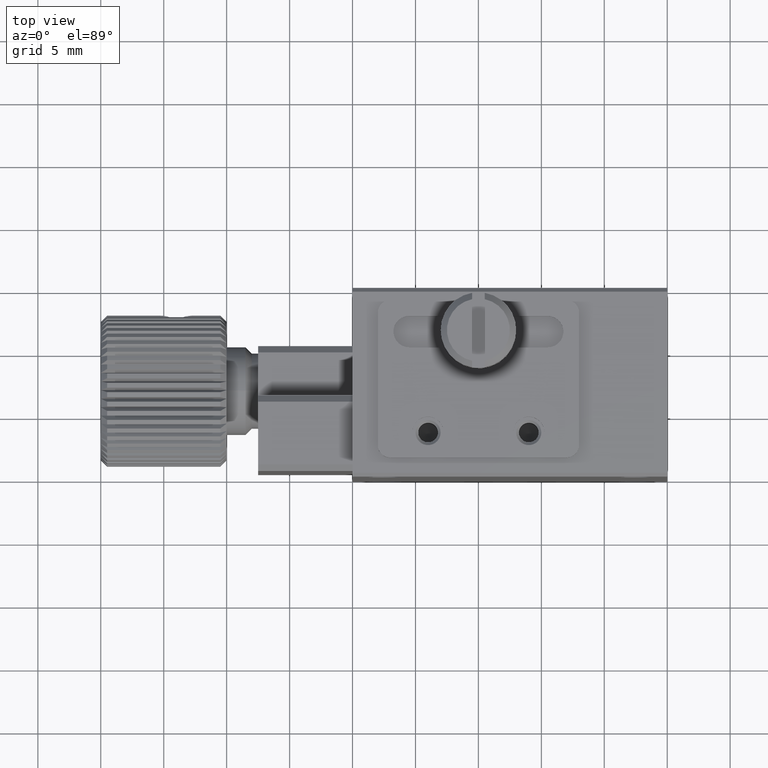
[diagram: clean part render]
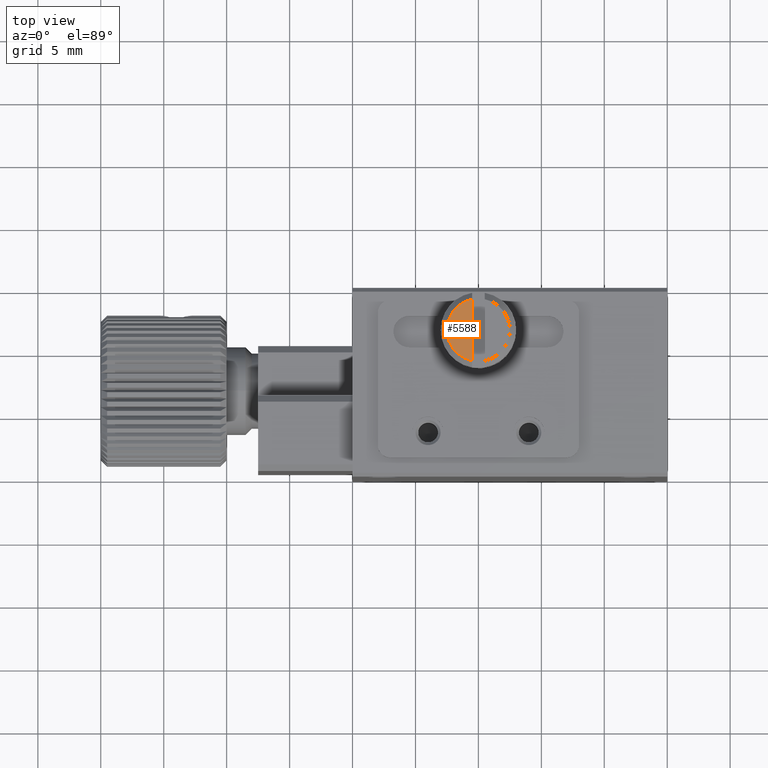
[diagram: same view with one face highlighted and labeled with its STEP entity id]
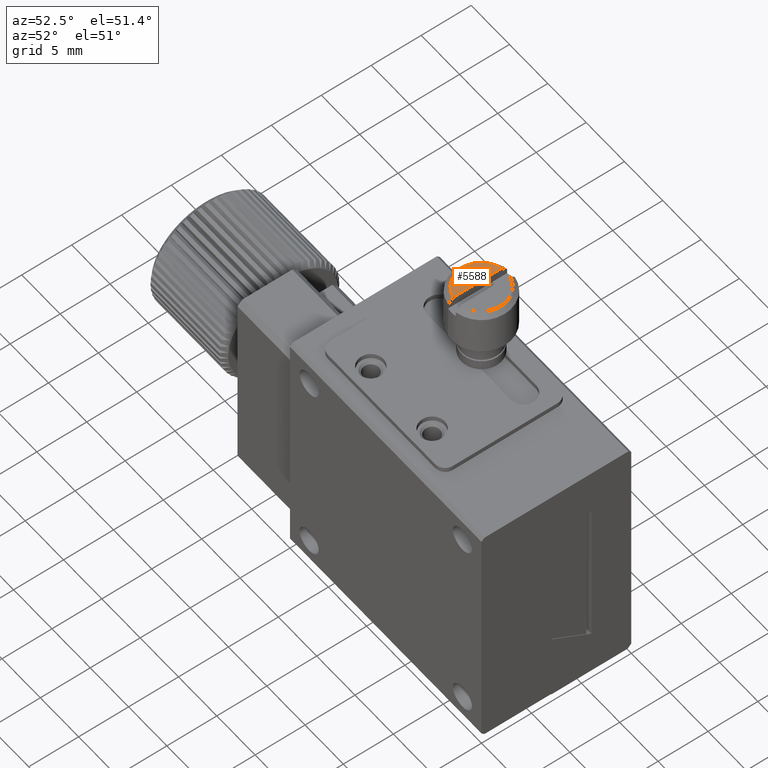
[diagram: same view with one face highlighted and labeled with its STEP entity id]
A machine part, top view. The second image highlights one B-rep face of the part: STEP entity #5588.
A second angle (auxiliary view) of the same face is appended — the face is thin or edge-on in the first view.
In plain terms, the highlighted planar face has unit normal (0, 0, -1).
Its self-contained STEP definition (entity closure, byte-faithful):
#860 = CARTESIAN_POINT ( 'NONE',  ( 9.500000000000000000, 11.50000000000000000, 8.500000000000000000 ) ) ;
#1895 = DIRECTION ( 'NONE',  ( -1.000000000000000000, 0.000000000000000000, 0.000000000000000000 ) ) ;
#3075 = DIRECTION ( 'NONE',  ( -1.000000000000000000, 0.000000000000000000, -0.000000000000000000 ) ) ;
#4008 = CARTESIAN_POINT ( 'NONE',  ( 10.00000000000000000, 11.50000000000000000, 8.500000000000000000 ) ) ;
#4011 = CARTESIAN_POINT ( 'NONE',  ( 10.00000000000000000, 11.50000000000000000, 8.500000000026375346 ) ) ;
#4739 = DIRECTION ( 'NONE',  ( -0.000000000000000000, -1.000000000000000000, -0.000000000000000000 ) ) ;
#4749 = VECTOR ( 'NONE', #4739, 1000.000000000000000 ) ;
#5070 = FACE_OUTER_BOUND ( 'NONE', #6017, .T. ) ;
#5119 = CARTESIAN_POINT ( 'NONE',  ( 9.500000000000000000, 9.050510257206019205, 8.500000000022614799 ) ) ;
#5588 = ADVANCED_FACE ( 'NONE', ( #5070 ), #7744, .F. ) ;
#5995 = CIRCLE ( 'NONE', #12167, 2.500000000006821210 ) ;
#6017 = EDGE_LOOP ( 'NONE', ( #7572, #7975 ) ) ;
#7572 = ORIENTED_EDGE ( 'NONE', *, *, #10481, .F. ) ;
#7688 = DIRECTION ( 'NONE',  ( 0.000000000000000000, 0.000000000000000000, -1.000000000000000000 ) ) ;
#7744 = PLANE ( 'NONE',  #10072 ) ;
#7975 = ORIENTED_EDGE ( 'NONE', *, *, #8624, .F. ) ;
#8624 = EDGE_CURVE ( 'NONE', #12166, #11042, #9405, .T. ) ;
#9405 = LINE ( 'NONE', #860, #4749 ) ;
#10072 = AXIS2_PLACEMENT_3D ( 'NONE', #4008, #11794, #3075 ) ;
#10481 = EDGE_CURVE ( 'NONE', #11042, #12166, #5995, .T. ) ;
#10724 = CARTESIAN_POINT ( 'NONE',  ( 9.500000000000000000, 13.94948974279397724, 8.500000000022614799 ) ) ;
#11042 = VERTEX_POINT ( 'NONE', #5119 ) ;
#11794 = DIRECTION ( 'NONE',  ( 0.000000000000000000, 0.000000000000000000, -1.000000000000000000 ) ) ;
#12166 = VERTEX_POINT ( 'NONE', #10724 ) ;
#12167 = AXIS2_PLACEMENT_3D ( 'NONE', #4011, #7688, #1895 ) ;